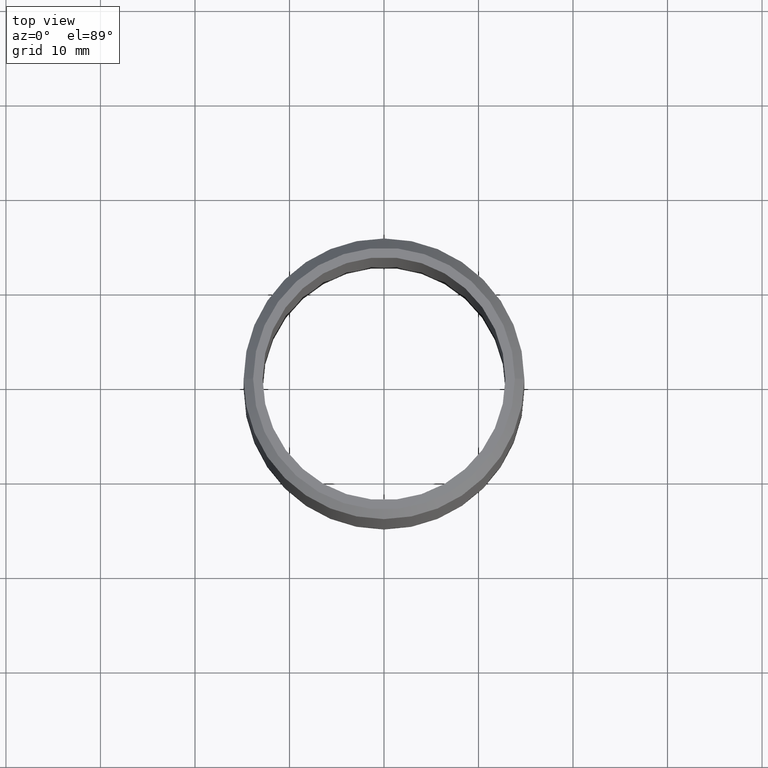
[diagram: clean part render]
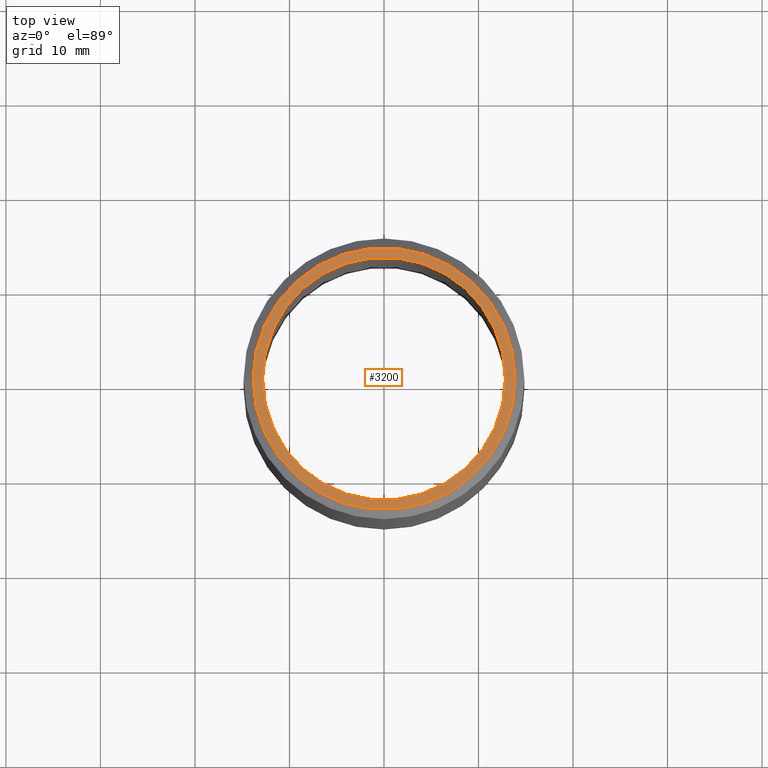
[diagram: same view with one face highlighted and labeled with its STEP entity id]
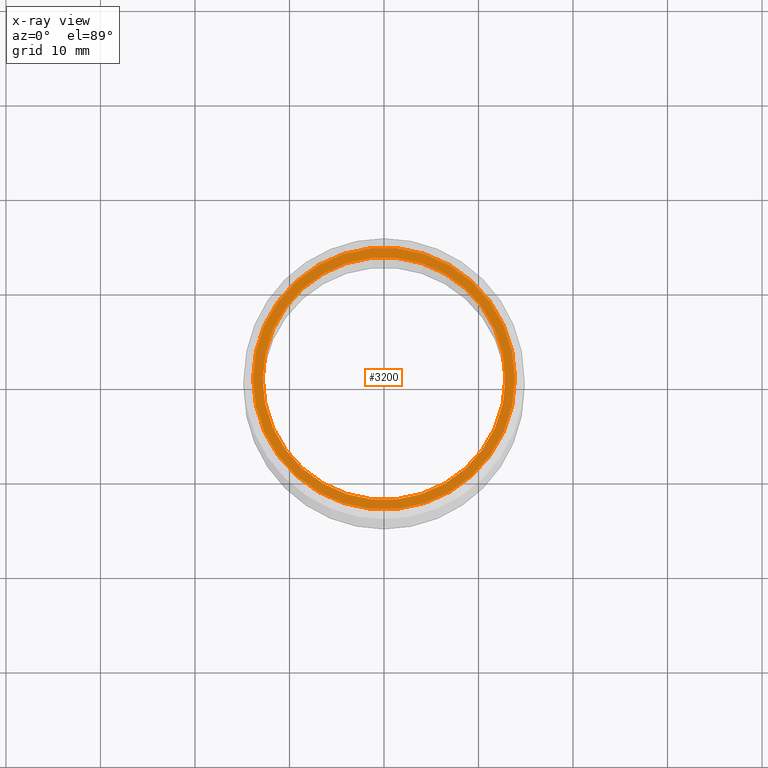
[diagram: x-ray of the same camera — body ghosted, the highlighted face saturated]
A machine part, top view. The second image highlights one B-rep face of the part: STEP entity #3200.
The next image is the same camera in x-ray: the body ghosted, the highlighted face saturated — about 0% of this face is hidden behind the body in this view.
In plain terms, the highlighted planar face has unit normal (0, 0, 1).
Its self-contained STEP definition (entity closure, byte-faithful):
#73 = DIRECTION ( 'NONE',  ( 0.0000000000000000000, 0.0000000000000000000, 1.000000000000000000 ) ) ;
#161 = DIRECTION ( 'NONE',  ( 0.0000000000000000000, 0.0000000000000000000, 1.000000000000000000 ) ) ;
#524 = AXIS2_PLACEMENT_3D ( 'NONE', #9537, #11260, #12354 ) ;
#659 = CARTESIAN_POINT ( 'NONE',  ( 13.84999999999998700, 1.757368156776451200E-015, 32.50000000000000000 ) ) ;
#1551 = AXIS2_PLACEMENT_3D ( 'NONE', #6688, #5795, #4795 ) ;
#2127 = DIRECTION ( 'NONE',  ( 1.000000000000000000, 0.0000000000000000000, 0.0000000000000000000 ) ) ;
#2237 = EDGE_CURVE ( 'NONE', #11926, #2649, #11443, .T. ) ;
#2406 = VERTEX_POINT ( 'NONE', #7219 ) ;
#2649 = VERTEX_POINT ( 'NONE', #11652 ) ;
#2726 = AXIS2_PLACEMENT_3D ( 'NONE', #2936, #73, #7993 ) ;
#2936 = CARTESIAN_POINT ( 'NONE',  ( 0.0000000000000000000, 0.0000000000000000000, 32.50000000000000000 ) ) ;
#2963 = CARTESIAN_POINT ( 'NONE',  ( -12.85000000000000100, 0.0000000000000000000, 32.50000000000000000 ) ) ;
#3200 = ADVANCED_FACE ( 'NONE', ( #12056, #4109 ), #7665, .T. ) ;
#3402 = ORIENTED_EDGE ( 'NONE', *, *, #6811, .F. ) ;
#3935 = CARTESIAN_POINT ( 'NONE',  ( 0.0000000000000000000, 0.0000000000000000000, 32.50000000000000000 ) ) ;
#4109 = FACE_BOUND ( 'NONE', #9266, .T. ) ;
#4696 = AXIS2_PLACEMENT_3D ( 'NONE', #3935, #6825, #2127 ) ;
#4795 = DIRECTION ( 'NONE',  ( 1.000000000000000000, 0.0000000000000000000, -0.0000000000000000000 ) ) ;
#5795 = DIRECTION ( 'NONE',  ( 0.0000000000000000000, 0.0000000000000000000, 1.000000000000000000 ) ) ;
#5812 = CARTESIAN_POINT ( 'NONE',  ( 0.0000000000000000000, 0.0000000000000000000, 32.50000000000000000 ) ) ;
#6688 = CARTESIAN_POINT ( 'NONE',  ( 0.0000000000000000000, 0.0000000000000000000, 32.50000000000000000 ) ) ;
#6811 = EDGE_CURVE ( 'NONE', #2406, #7246, #9098, .T. ) ;
#6825 = DIRECTION ( 'NONE',  ( 0.0000000000000000000, 0.0000000000000000000, 1.000000000000000000 ) ) ;
#7219 = CARTESIAN_POINT ( 'NONE',  ( 12.85000000000000100, 1.573671136904349300E-015, 32.50000000000000000 ) ) ;
#7246 = VERTEX_POINT ( 'NONE', #2963 ) ;
#7665 = PLANE ( 'NONE',  #1551 ) ;
#7904 = EDGE_LOOP ( 'NONE', ( #8161, #12404 ) ) ;
#7993 = DIRECTION ( 'NONE',  ( 1.000000000000000000, 0.0000000000000000000, 0.0000000000000000000 ) ) ;
#8112 = EDGE_CURVE ( 'NONE', #7246, #2406, #8604, .T. ) ;
#8161 = ORIENTED_EDGE ( 'NONE', *, *, #10336, .T. ) ;
#8604 = CIRCLE ( 'NONE', #2726, 12.85000000000000100 ) ;
#8687 = DIRECTION ( 'NONE',  ( 1.000000000000000000, 0.0000000000000000000, 0.0000000000000000000 ) ) ;
#9098 = CIRCLE ( 'NONE', #11956, 12.85000000000000100 ) ;
#9266 = EDGE_LOOP ( 'NONE', ( #11661, #3402 ) ) ;
#9537 = CARTESIAN_POINT ( 'NONE',  ( 0.0000000000000000000, 0.0000000000000000000, 32.50000000000000000 ) ) ;
#10336 = EDGE_CURVE ( 'NONE', #2649, #11926, #12327, .T. ) ;
#11260 = DIRECTION ( 'NONE',  ( 0.0000000000000000000, 0.0000000000000000000, 1.000000000000000000 ) ) ;
#11443 = CIRCLE ( 'NONE', #4696, 13.84999999999998700 ) ;
#11652 = CARTESIAN_POINT ( 'NONE',  ( -13.84999999999998700, 0.0000000000000000000, 32.50000000000000000 ) ) ;
#11661 = ORIENTED_EDGE ( 'NONE', *, *, #8112, .F. ) ;
#11926 = VERTEX_POINT ( 'NONE', #659 ) ;
#11956 = AXIS2_PLACEMENT_3D ( 'NONE', #5812, #161, #8687 ) ;
#12056 = FACE_OUTER_BOUND ( 'NONE', #7904, .T. ) ;
#12327 = CIRCLE ( 'NONE', #524, 13.84999999999998700 ) ;
#12354 = DIRECTION ( 'NONE',  ( 1.000000000000000000, 0.0000000000000000000, 0.0000000000000000000 ) ) ;
#12404 = ORIENTED_EDGE ( 'NONE', *, *, #2237, .T. ) ;